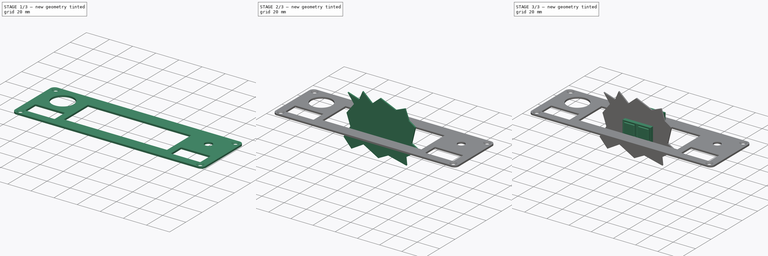
[diagram: build sequence overview — one tinted view per stage of 3, left to right]
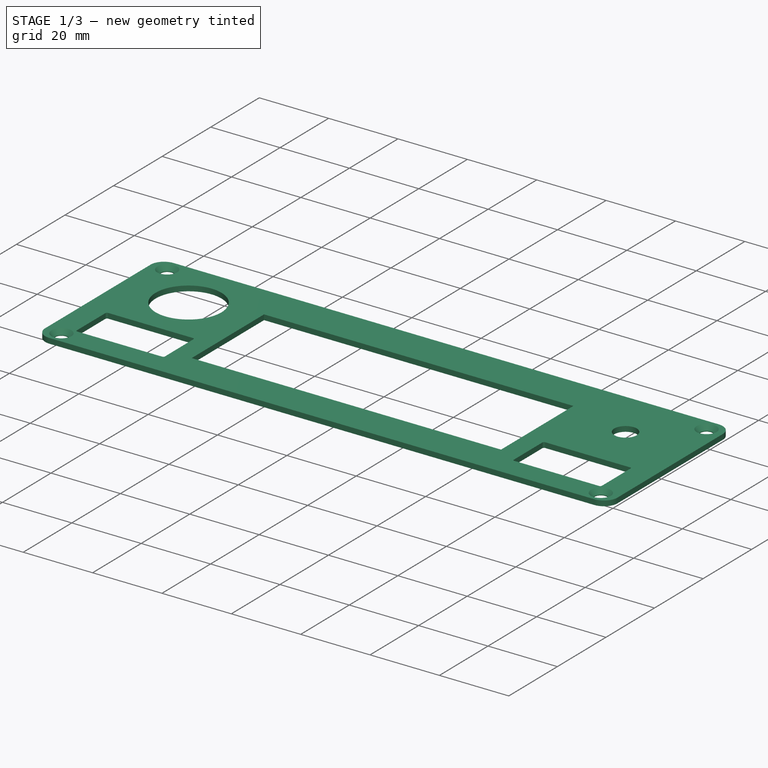
[diagram: stage 1 of 3 — iso view after this stage's code; geometry added in this stage tinted green]
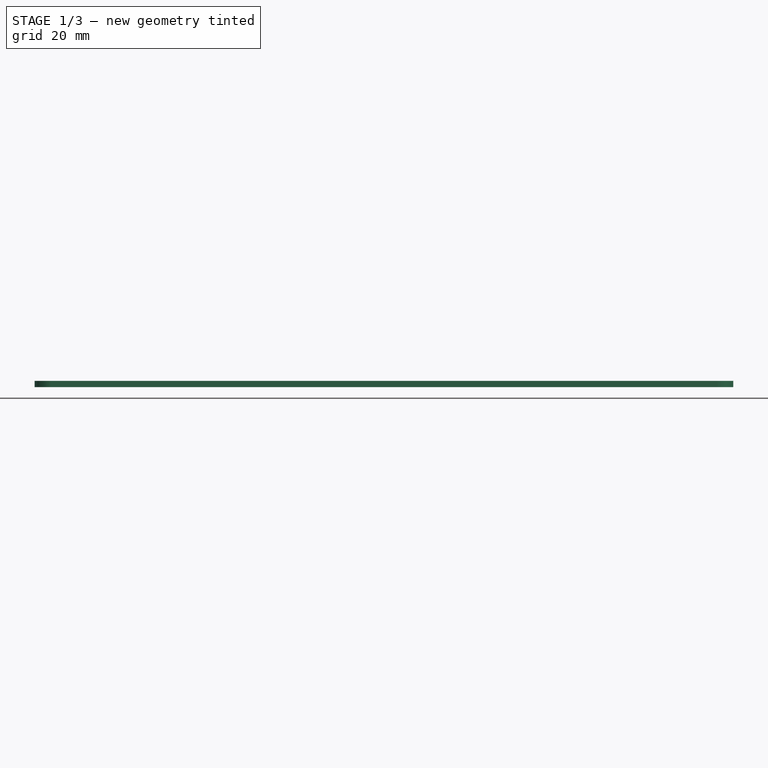
[diagram: stage 1 of 3 — front view after this stage's code; geometry added in this stage tinted green]
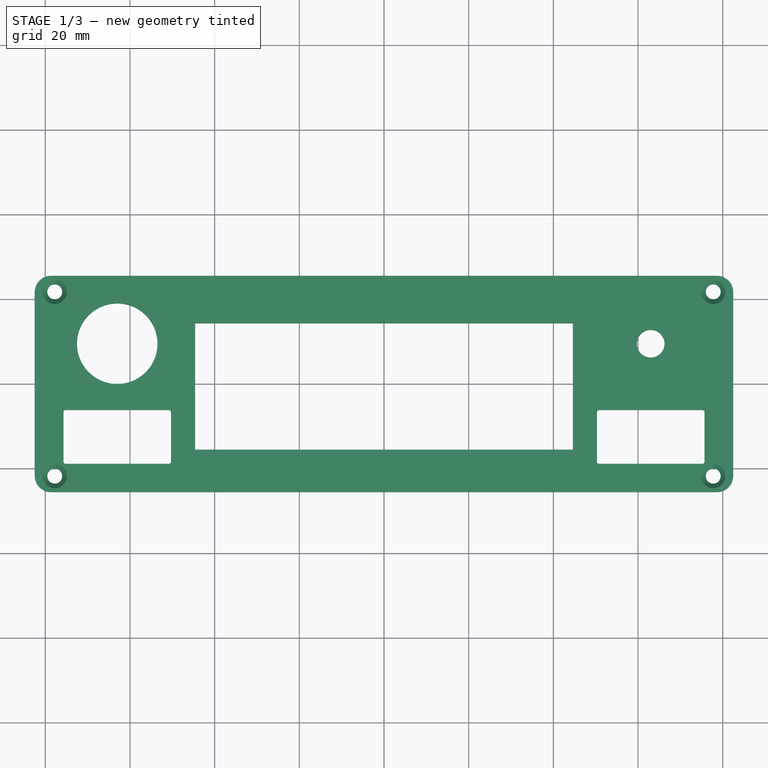
[diagram: stage 1 of 3 — top view after this stage's code; geometry added in this stage tinted green]
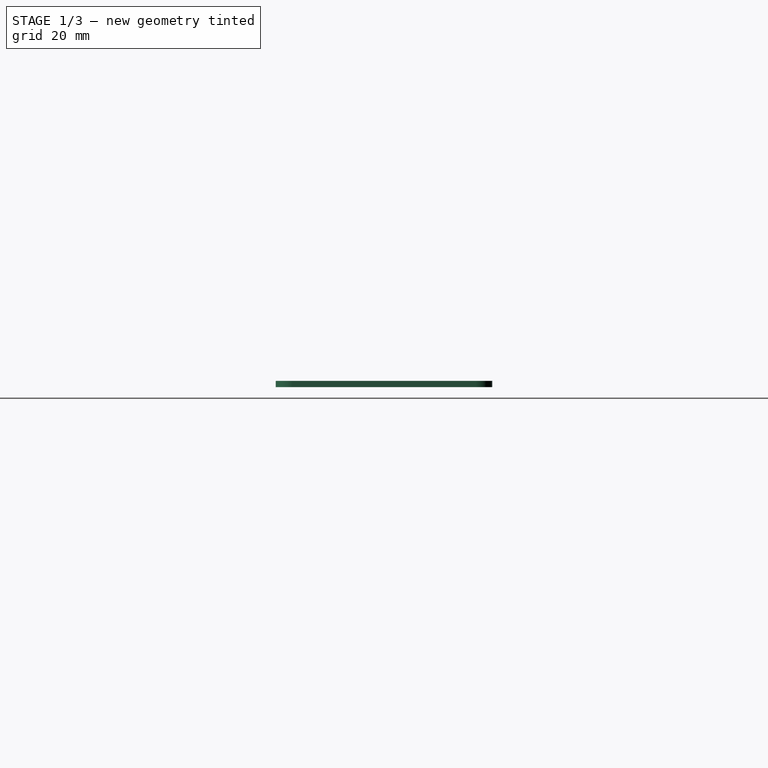
[diagram: stage 1 of 3 — right view after this stage's code; geometry added in this stage tinted green]
FCSTD DOCUMENT  (FreeCAD 0.18.4R)
Label: Grayhill_holder_test_assembly
License: All rights reserved
LicenseURL: http://en.wikipedia.org/wiki/All_rights_reserved
objects: Part::Feature×17, Part::MultiFuse×2, Sketcher::SketchObject×2, PartDesign::Body×2, PartDesign::Pad×1, PartDesign::FeatureBase×1, PartDesign::Pocket×1
note: 28 computed .brp shape members not serialized (recipe doc carries the construction recipe); baked Part::Feature solids carry a one-line shape summary decoded from their .brp

FEATURE [PartDesign::Body] Body  label="carrier_PCB_1.2mm"
  Group = -> [Sketch,Pad]
  Origin = -> Origin
  Tip = -> Pad
FEATURE [Part::Feature] Part__Feature018  label="T Front Plate"
  Placement = pos=(0,25.5,111.8) rot=(0,0,1;0rad)
  shape: bbox 165 x 51.13 x 1.5 mm, 18 faces (baked)
FEATURE [PartDesign::FeatureBase] BaseFeature001
  BaseFeature = -> Part__Feature018
FEATURE [Sketcher::SketchObject] Sketch004
  MapMode = 5
  Placement = pos=(0,0,0) rot=(1,0,0;3.14159rad)
  Support = -> [BaseFeature001]
  sketch-geometry (26):
    g0: Circle CenterX=63 CenterY=-9.5 CenterZ=0 NormalX=0 NormalY=0 NormalZ=1 AngleXU=0 Radius=3.25
    g1: Circle CenterX=-63 CenterY=-9.5 CenterZ=0 NormalX=0 NormalY=0 NormalZ=1 AngleXU=0 Radius=9.5
    g2: LineSegment StartX=-50.8 StartY=6.15 StartZ=0 EndX=-75.2 EndY=6.15 EndZ=0
    g3: LineSegment StartX=-75.7 StartY=6.65 StartZ=0 EndX=-75.7 EndY=18.35 EndZ=0
    g4: LineSegment StartX=-75.2 StartY=18.85 StartZ=0 EndX=-50.8 EndY=18.85 EndZ=0
    g5: LineSegment StartX=-50.3 StartY=18.35 StartZ=0 EndX=-50.3 EndY=6.65 EndZ=0
    g6: ArcOfCircle CenterX=-50.8 CenterY=6.65 CenterZ=0 NormalX=0 NormalY=0 NormalZ=1 AngleXU=0 Radius=0.5 StartAngle=4.71239 EndAngle=6.28319
    g7: ArcOfCircle CenterX=-75.2 CenterY=6.65 CenterZ=0 NormalX=0 NormalY=0 NormalZ=1 AngleXU=0 Radius=0.5 StartAngle=3.14159 EndAngle=4.71239
    g8: ArcOfCircle CenterX=-75.2 CenterY=18.35 CenterZ=0 NormalX=0 NormalY=0 NormalZ=1 AngleXU=0 Radius=0.5 StartAngle=1.5708 EndAngle=3.14159
    g9: ArcOfCircle CenterX=-50.8 CenterY=18.35 CenterZ=0 NormalX=0 NormalY=0 NormalZ=1 AngleXU=0 Radius=0.5 StartAngle=1.6e-15 EndAngle=1.5708
    g10: GeomPoint X=-63 Y=18.35 Z=0
    g11: GeomPoint X=-50.8 Y=12.5 Z=0
    g12: LineSegment StartX=75.2 StartY=6.15 StartZ=0 EndX=50.8 EndY=6.15 EndZ=0
    g13: LineSegment StartX=50.3 StartY=6.65 StartZ=0 EndX=50.3 EndY=18.35 EndZ=0
    g14: LineSegment StartX=50.8 StartY=18.85 StartZ=0 EndX=75.2 EndY=18.85 EndZ=0
    g15: LineSegment StartX=75.7 StartY=18.35 StartZ=0 EndX=75.7 EndY=6.65 EndZ=0
    g16: ArcOfCircle CenterX=75.2 CenterY=6.65 CenterZ=0 NormalX=0 NormalY=0 NormalZ=1 AngleXU=0 Radius=0.5 StartAngle=4.71239 EndAngle=6.28319
    g17: ArcOfCircle CenterX=50.8 CenterY=6.65 CenterZ=0 NormalX=0 NormalY=0 NormalZ=1 AngleXU=0 Radius=0.5 StartAngle=3.14159 EndAngle=4.71239
    g18: ArcOfCircle CenterX=50.8 CenterY=18.35 CenterZ=0 NormalX=0 NormalY=0 NormalZ=1 AngleXU=0 Radius=0.5 StartAngle=1.5708 EndAngle=3.14159
    g19: ArcOfCircle CenterX=75.2 CenterY=18.35 CenterZ=0 NormalX=0 NormalY=0 NormalZ=1 AngleXU=0 Radius=0.5 StartAngle=0 EndAngle=1.5708
    g20: GeomPoint X=63 Y=6.65 Z=0
    g21: GeomPoint X=50.8 Y=12.5 Z=0
    g22: LineSegment StartX=-44.6 StartY=-14.3 StartZ=0 EndX=44.6 EndY=-14.3 EndZ=0
    g23: LineSegment StartX=44.6 StartY=-14.3 StartZ=0 EndX=44.6 EndY=15.5 EndZ=0
    g24: LineSegment StartX=44.6 StartY=15.5 StartZ=0 EndX=-44.6 EndY=15.5 EndZ=0
    g25: LineSegment StartX=-44.6 StartY=15.5 StartZ=0 EndX=-44.6 EndY=-14.3 EndZ=0
  constraints (61):
    c: DistanceX(g-1,g0) = 63
    c: DistanceY(g0,g-1) = 9.5
    c: Radius(g0) = 3.25
    c: DistanceX(g1,g-1) = 63
    c: DistanceY(g1,g-1) = 9.5
    c: Radius(g1) = 9.5
    c: Horizontal(g2)
    c: Horizontal(g4)
    c: Vertical(g3)
    c: Vertical(g5)
    c: Tangent(g5,g6) = 1.5708
    c: Tangent(g2,g6) = 1.5708
    c: Tangent(g3,g7) = 1.5708
    c: Tangent(g2,g7) = 1.5708
    c: Tangent(g3,g8) = 1.5708
    c: Tangent(g4,g8) = 1.5708
    c: Tangent(g5,g9) = 1.5708
    c: Tangent(g4,g9) = 1.5708
    c: Radius(g6) = 0.5
    c: Equal(g6,g7)
    c: Equal(g7,g8)
    c: Equal(g8,g9)
    c: DistanceX(g3,g5) = 25.4
    c: DistanceY(g2,g4) = 12.7
    c: Symmetric(g5,g3,g10)
    c: Symmetric(g2,g4,g11)
    c: DistanceY(g-1,g11) = 12.5
    c: DistanceX(g10,g-1) = 63
    c: Horizontal(g12)
    c: Horizontal(g14)
    c: Vertical(g13)
    c: Vertical(g15)
    c: Tangent(g15,g16) = 1.5708
    c: Tangent(g12,g16) = 1.5708
    c: Tangent(g12,g17) = 1.5708
    c: Tangent(g13,g17) = 1.5708
    c: Tangent(g13,g18) = 1.5708
    c: Tangent(g14,g18) = 1.5708
    c: Tangent(g14,g19) = 1.5708
    c: Tangent(g15,g19) = 1.5708
    c: Equal(g16,g19)
    c: Equal(g17,g6)
    c: Equal(g13,g15)
    c: Equal(g15,g5)
    c: Equal(g2,g12)
    c: Equal(g12,g14)
    c: Symmetric(g15,g13,g20)
    c: Symmetric(g12,g14,g21)
    c: DistanceX(g-1,g20) = 63
    c: DistanceY(g-1,g21) = 12.5
    c: Coincident(g22,g23)
    c: Coincident(g23,g24)
    c: Coincident(g24,g25)
    c: Coincident(g25,g22)
    c: Horizontal(g24)
    c: Vertical(g23)
    c: Vertical(g25)
    c: Distance(g24) = 89.2
    c: Distance(g23) = 29.8
    c: Symmetric(g22,g22,g-2)
    c: DistanceY(g-1,g24) = 15.5
FEATURE [PartDesign::Pocket] Pocket001
  BaseFeature = -> BaseFeature001
  Length = 5
  Length2 = 100
  Midplane = true
  Profile = -> Sketch004
  Type = 0
FEATURE [PartDesign::Body] Body004  label="FrontPlate1.5mm_with_Cutouts"
  BaseFeature = -> Part__Feature018
  Group = -> [BaseFeature001,Sketch004,Pocket001]
  Origin = -> Origin007
  Placement = pos=(-63,-3.2,12.5) rot=(1,0,0;1.5708rad)
  Tip = -> Pocket001
FEATURE [Part::Feature] Part__Feature019  label="Pocket-Grayhill_3d_holder_3mm-Right002"
  shape: bbox 33.69 x 9.54 x 21.99 mm, 86 faces (baked)
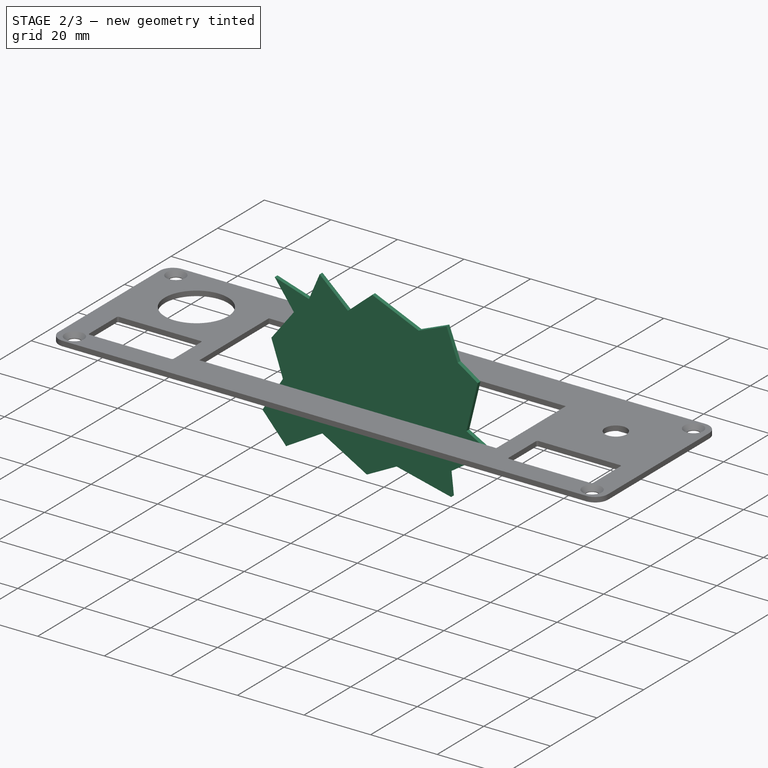
[diagram: stage 2 of 3 — iso view after this stage's code; geometry added in this stage tinted green]
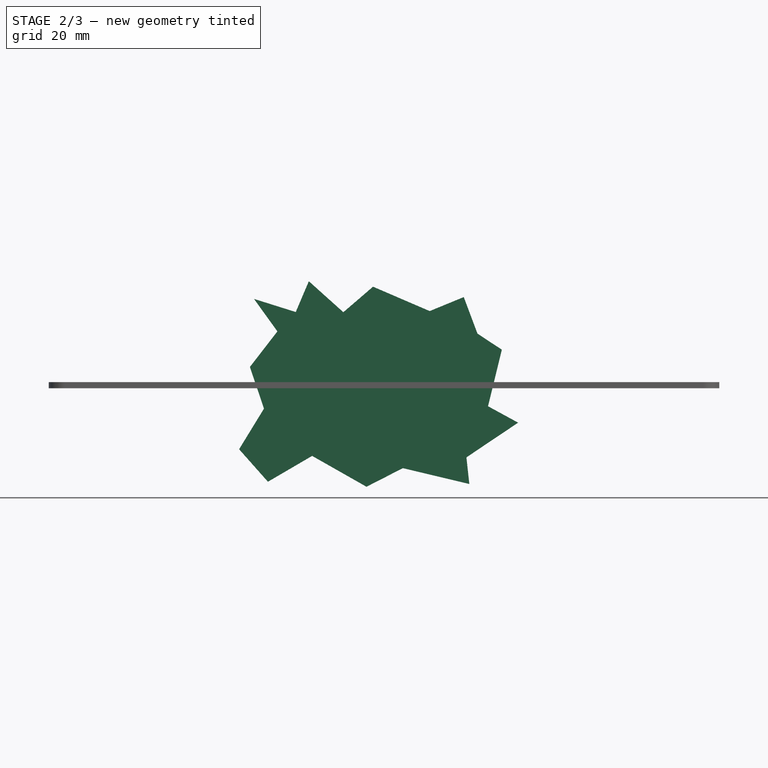
[diagram: stage 2 of 3 — front view after this stage's code; geometry added in this stage tinted green]
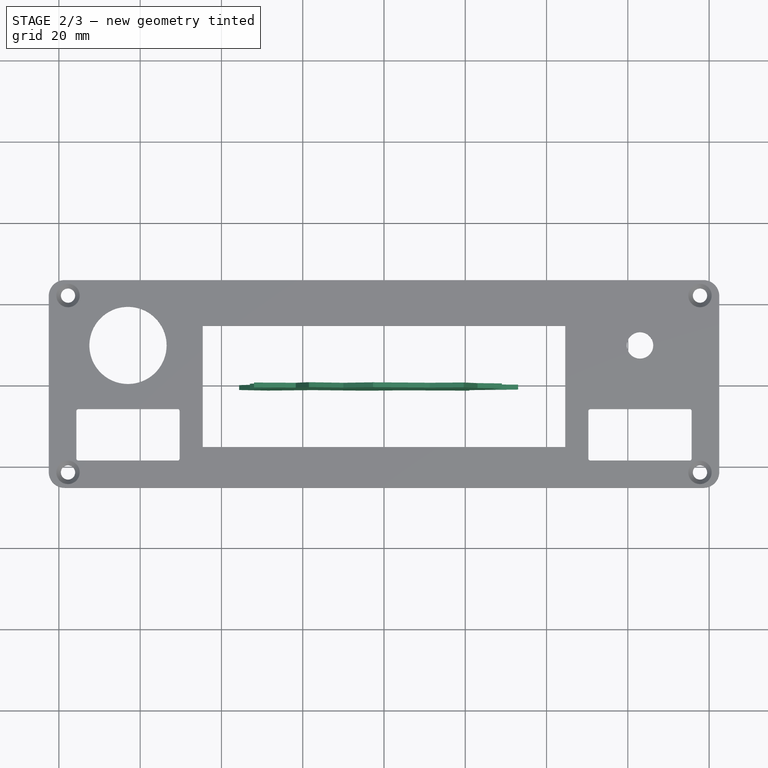
[diagram: stage 2 of 3 — top view after this stage's code; geometry added in this stage tinted green]
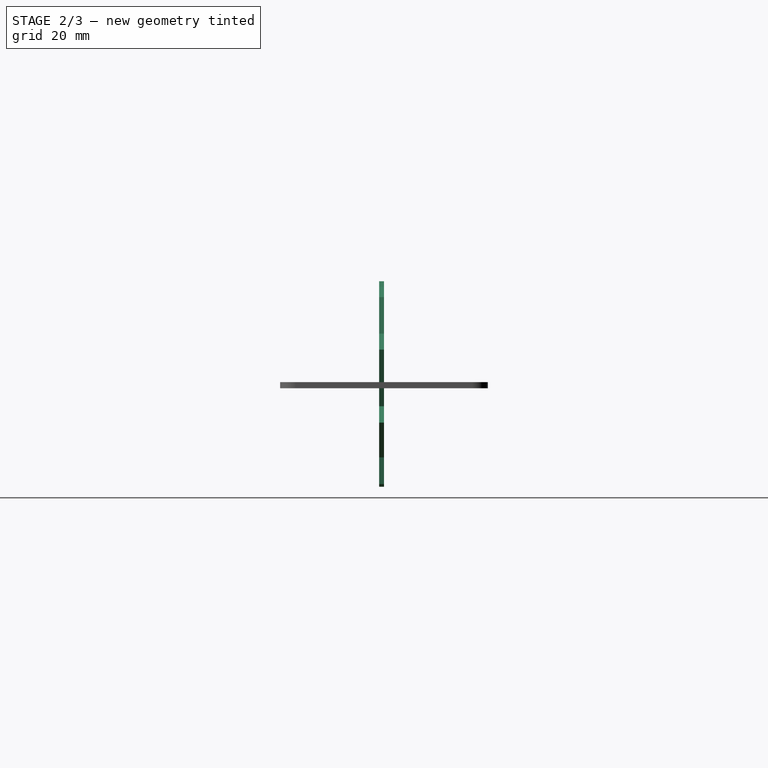
[diagram: stage 2 of 3 — right view after this stage's code; geometry added in this stage tinted green]
FEATURE [Part::Feature] Part__Feature014  label="ISO1580_M3x16"
  Placement = pos=(10.16,-1.2,8.89) rot=(1,0,0;1.5708rad)
  shape: bbox 5.6 x 18.3 x 5.6 mm, 141 faces (baked)
FEATURE [Part::Feature] Part__Feature015  label="ISO1580_M3x12"
  Placement = pos=(-15.24,-1.2,-3.81) rot=(1,0,0;1.5708rad)
  shape: bbox 5.6 x 14.3 x 5.6 mm, 109 faces (baked)
FEATURE [Part::Feature] Part__Feature016  label="NUT_M3x2"
  Placement = pos=(-15.24,10.4,-3.81) rot=(1,0,0;1.5708rad)
  shape: bbox 6.351 x 1.8 x 6.351 mm, 25 faces (baked)
FEATURE [Part::Feature] Part__Feature017  label="NUT_M3x2-001"
  Placement = pos=(10.16,10.4,8.89) rot=(1,0,0;1.5708rad)
  shape: bbox 6.351 x 1.8 x 6.351 mm, 25 faces (baked)
FEATURE [Sketcher::SketchObject] Sketch
  MapMode = 5
  Placement = pos=(0,0,0) rot=(1,0,0;1.5708rad)
  Support = -> [XZ_Plane]
  sketch-geometry (21):
    g0: LineSegment StartX=-32 StartY=22 StartZ=0 EndX=-26.2311 EndY=14 EndZ=0
    g1: LineSegment StartX=-26.2311 StartY=14 StartZ=0 EndX=-33 EndY=5.24824 EndZ=0
    g2: LineSegment StartX=-33 StartY=5.24824 StartZ=0 EndX=-29.5326 EndY=-5 EndZ=0
    g3: LineSegment StartX=-29.5326 StartY=-5 StartZ=0 EndX=-35.6566 EndY=-15 EndZ=0
    g4: LineSegment StartX=-35.6566 StartY=-15 StartZ=0 EndX=-28.5625 EndY=-23 EndZ=0
    g5: LineSegment StartX=-28.5625 StartY=-23 StartZ=0 EndX=-17.6825 EndY=-16.6389 EndZ=0
    g6: LineSegment StartX=-17.6825 StartY=-16.6389 StartZ=0 EndX=-4.30167 EndY=-24.2349 EndZ=0
    g7: LineSegment StartX=-4.30167 StartY=-24.2349 StartZ=0 EndX=4.64417 EndY=-19.653 EndZ=0
    g8: LineSegment StartX=4.64417 StartY=-19.653 StartZ=0 EndX=21 EndY=-23.5546 EndZ=0
    g9: LineSegment StartX=21 StartY=-23.5546 StartZ=0 EndX=20.2801 EndY=-17 EndZ=0
    g10: LineSegment StartX=20.2801 StartY=-17 StartZ=0 EndX=33 EndY=-8.46152 EndZ=0
    g11: LineSegment StartX=33 StartY=-8.46152 StartZ=0 EndX=25.5977 EndY=-4.417 EndZ=0
    g12: LineSegment StartX=25.5977 StartY=-4.417 StartZ=0 EndX=29 EndY=9.5008 EndZ=0
    g13: LineSegment StartX=29 StartY=9.5008 StartZ=0 EndX=23 EndY=13.4505 EndZ=0
    g14: LineSegment StartX=23 StartY=13.4505 StartZ=0 EndX=19.6289 EndY=22.445 EndZ=0
    g15: LineSegment StartX=19.6289 StartY=22.445 StartZ=0 EndX=11.247 EndY=19 EndZ=0
    g16: LineSegment StartX=11.247 StartY=19 StartZ=0 EndX=-2.69779 EndY=25 EndZ=0
    g17: LineSegment StartX=-2.69779 StartY=25 StartZ=0 EndX=-10 EndY=18.7192 EndZ=0
    g18: LineSegment StartX=-10 StartY=18.7192 StartZ=0 EndX=-18.4956 EndY=26.3419 EndZ=0
    g19: LineSegment StartX=-18.4956 StartY=26.3419 StartZ=0 EndX=-21.7183 EndY=18.7652 EndZ=0
    g20: LineSegment StartX=-21.7183 StartY=18.7652 StartZ=0 EndX=-32 EndY=22 EndZ=0
  constraints (21):
    c: Coincident(g0,g1)
    c: Coincident(g1,g2)
    c: Coincident(g2,g3)
    c: Coincident(g3,g4)
    c: Coincident(g4,g5)
    c: Coincident(g5,g6)
    c: Coincident(g6,g7)
    c: Coincident(g7,g8)
    c: Coincident(g8,g9)
    c: Coincident(g9,g10)
    c: Coincident(g10,g11)
    c: Coincident(g11,g12)
    c: Coincident(g12,g13)
    c: Coincident(g13,g14)
    c: Coincident(g14,g15)
    c: Coincident(g15,g16)
    c: Coincident(g16,g17)
    c: Coincident(g17,g18)
    c: Coincident(g18,g19)
    c: Coincident(g19,g20)
    c: PointOnObject(g20,g0)
FEATURE [PartDesign::Pad] Pad  label="CarrierPCB_1.2mm_Pad"
  Length = 1.2
  Length2 = 100
  Placement = pos=(0,0,0) rot=(1,0,0;1.5708rad)
  Profile = -> Sketch
  Type = 0
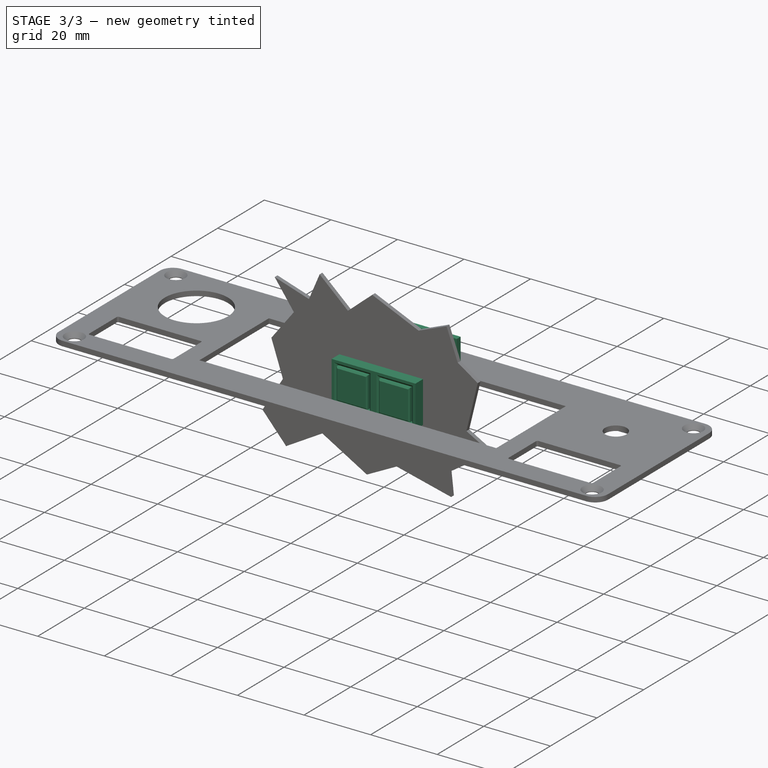
[diagram: stage 3 of 3 — iso view after this stage's code; geometry added in this stage tinted green]
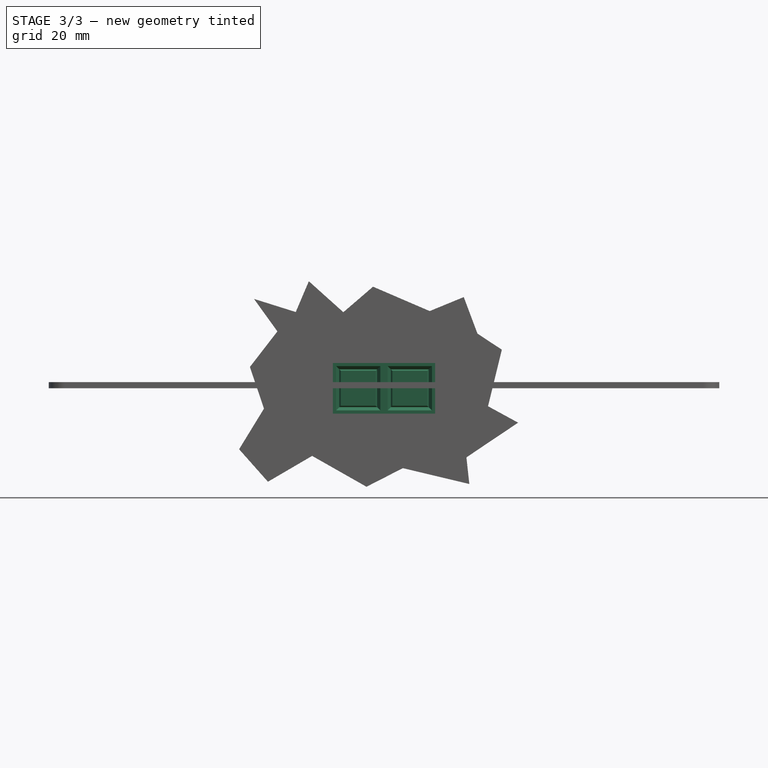
[diagram: stage 3 of 3 — front view after this stage's code; geometry added in this stage tinted green]
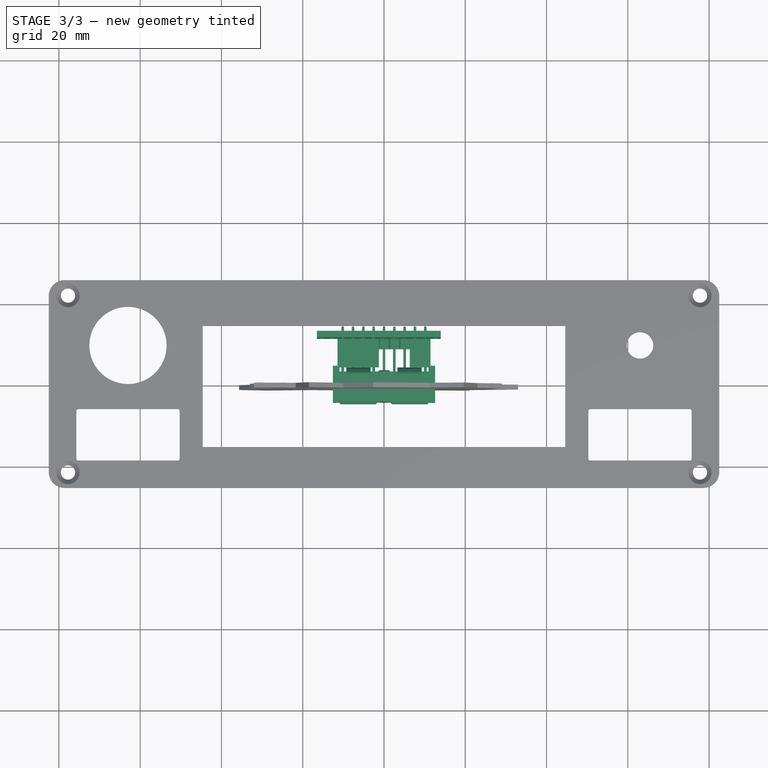
[diagram: stage 3 of 3 — top view after this stage's code; geometry added in this stage tinted green]
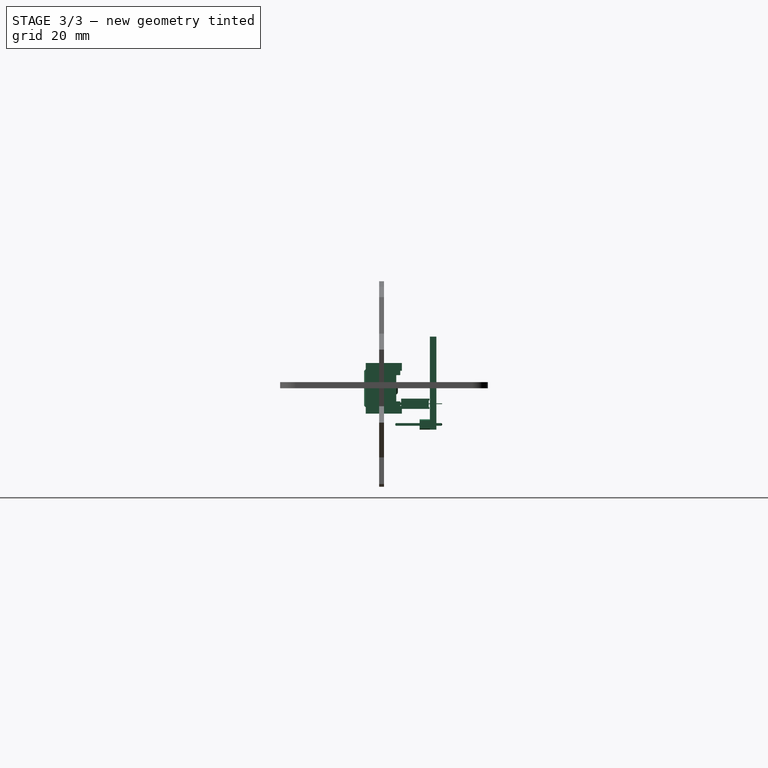
[diagram: stage 3 of 3 — right view after this stage's code; geometry added in this stage tinted green]
FEATURE [Part::Feature] Part__Feature010  label="PinSocket_1x02_P254mm_Vertical"
  shape: bbox 5.08 x 10.1 x 2.54 mm, 72 faces (baked)
FEATURE [Part::Feature] Part__Feature003  label="PCBBody"
  shape: bbox 25.15 x 1.6 x 10.85 mm, 14 faces (baked)
FEATURE [Part::Feature] Part__Feature006  label="BTN_B-Brass_pin-5.75mm"
  shape: bbox 0.7 x 5.75 x 0.7 mm, 14 faces (baked)
FEATURE [Part::Feature] Part__Feature  label="87DC3-201Body"
  shape: bbox 25.15 x 8.9 x 12.45 mm, 99 faces (baked)
FEATURE [Part::Feature] Part__Feature001  label="ButtonLeftBody"
  shape: bbox 9.3 x 1.8 x 9.3 mm, 10 faces (baked)
FEATURE [Part::Feature] Part__Feature009  label="PinSocket_1x04_P254mm_Vertical"
  shape: bbox 10.16 x 10.1 x 2.54 mm, 134 faces (baked)
FEATURE [Part::Feature] Part__Feature004  label="COMMON-Brass_pin-5.75mm"
  Placement = pos=(20.32,0,0) rot=(0,0,1;0rad)
  shape: bbox 0.7 x 5.75 x 0.7 mm, 14 faces (baked)
FEATURE [Part::Feature] Part__Feature002  label="ButtonRightBody"
  shape: bbox 9.3 x 1.8 x 9.3 mm, 10 faces (baked)
FEATURE [Part::Feature] Part__Feature005  label="BTN_A-Brass_pin-5.75mm"
  Placement = pos=(12.7,0,0) rot=(0,0,1;0rad)
  shape: bbox 0.7 x 5.75 x 0.7 mm, 14 faces (baked)
FEATURE [Part::MultiFuse] Fusion  label="Buttons_with_pinsockets"
  Placement = pos=(0,1.4,0) rot=(0,1,0;3.14159rad)
  Shapes = -> [Part__Feature009,Part__Feature010,Part__Feature,Part__Feature001,Part__Feature003,Part__Feature002,Part__Feature004,Part__Feature005,Part__Feature006]
FEATURE [Part::Feature] Part__Feature011  label="COMPOUND001"
  Placement = pos=(-2.54,0,0) rot=(0,0,1;0rad)
  shape: bbox 30.48 x 22.86 x 1.6 mm, 114 faces (baked)
FEATURE [Part::Feature] Part__Feature012  label="SOLID"
  Placement = pos=(10.16,-10.16,0) rot=(0.707107,0.707107,0;3.14159rad)
  shape: bbox 22.86 x 2.54 x 11.54 mm, 220 faces (baked)
FEATURE [Part::MultiFuse] Fusion001  label="BridgePCB_with_pinlist"
  Placement = pos=(0,11.3,1.27) rot=(0,0.707107,0.707107;3.14159rad)
  Shapes = -> [Part__Feature011,Part__Feature012]
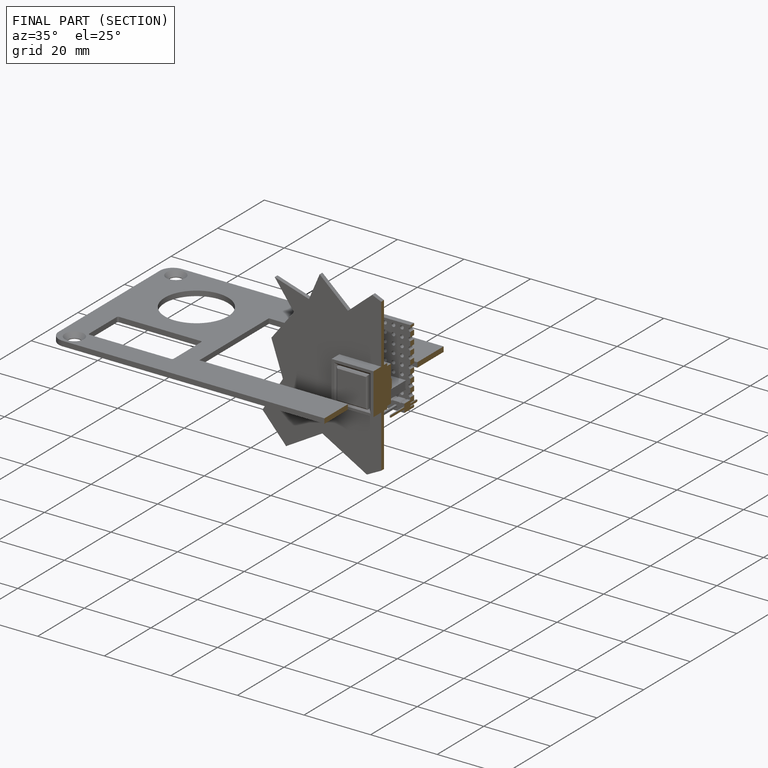
[diagram: finished part — half-section view (interior)]
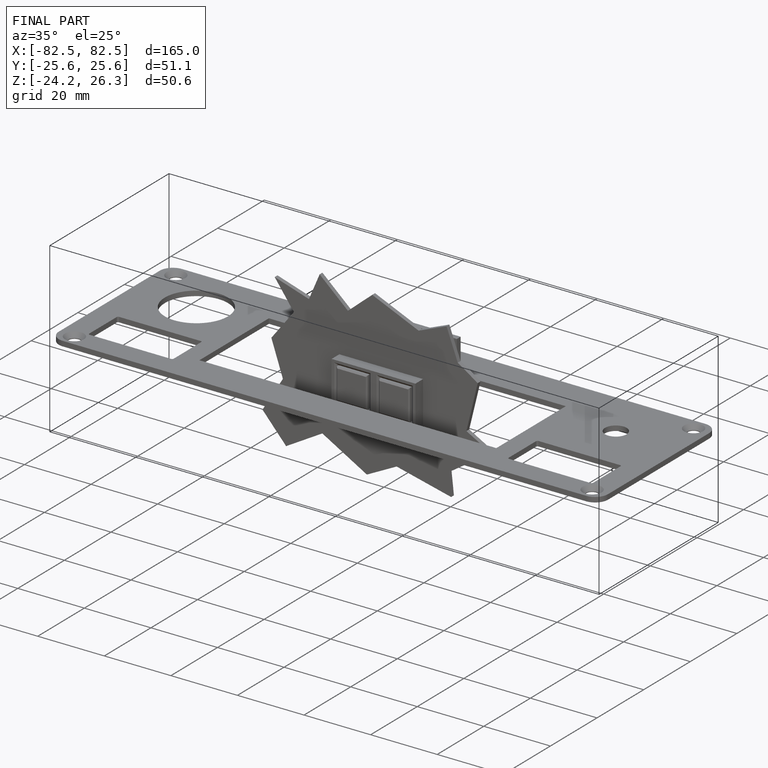
[diagram: finished part — iso view with bounding-box wireframe]
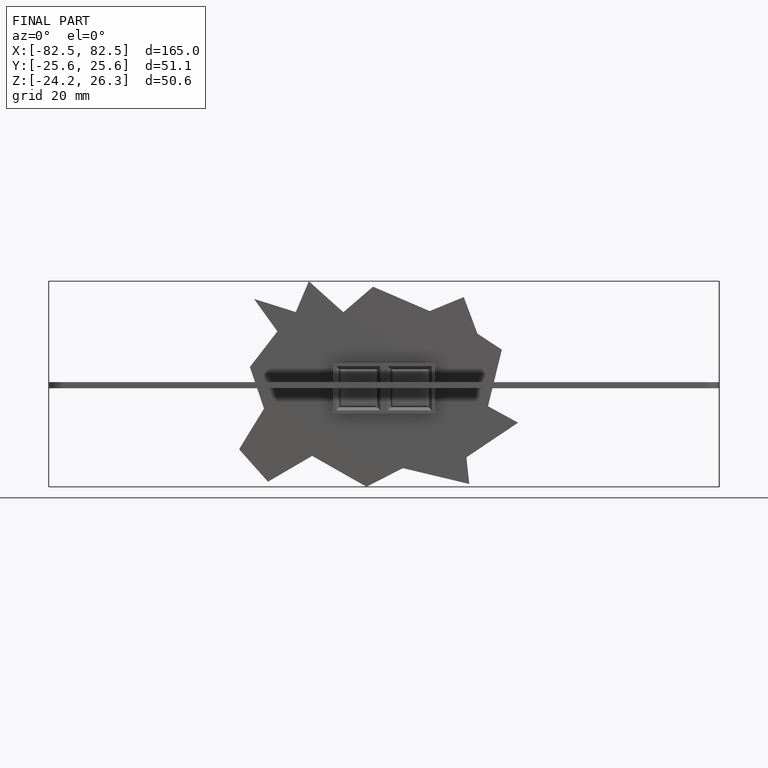
[diagram: finished part — front view with bounding-box wireframe]
